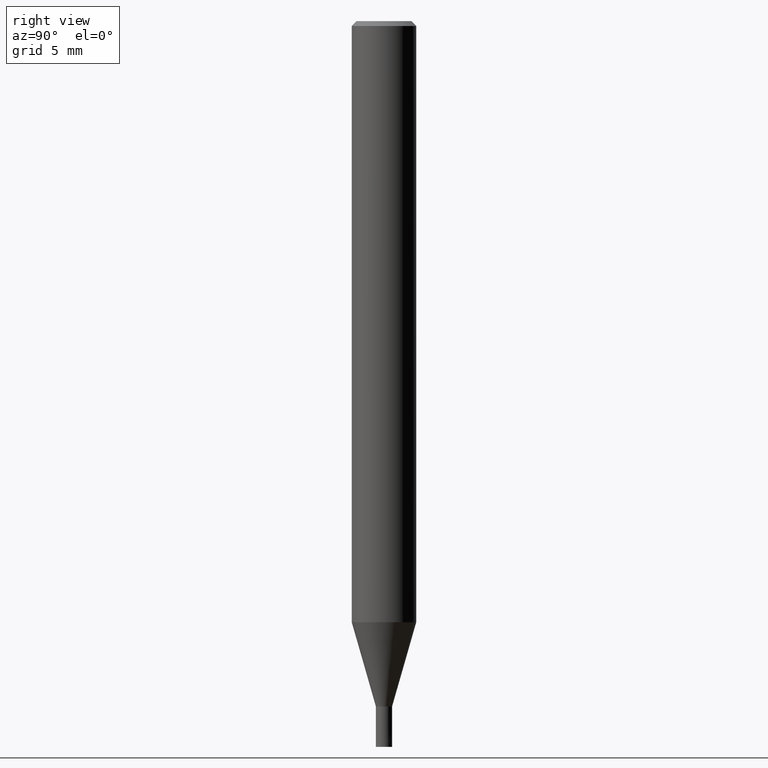
[diagram: clean part render]
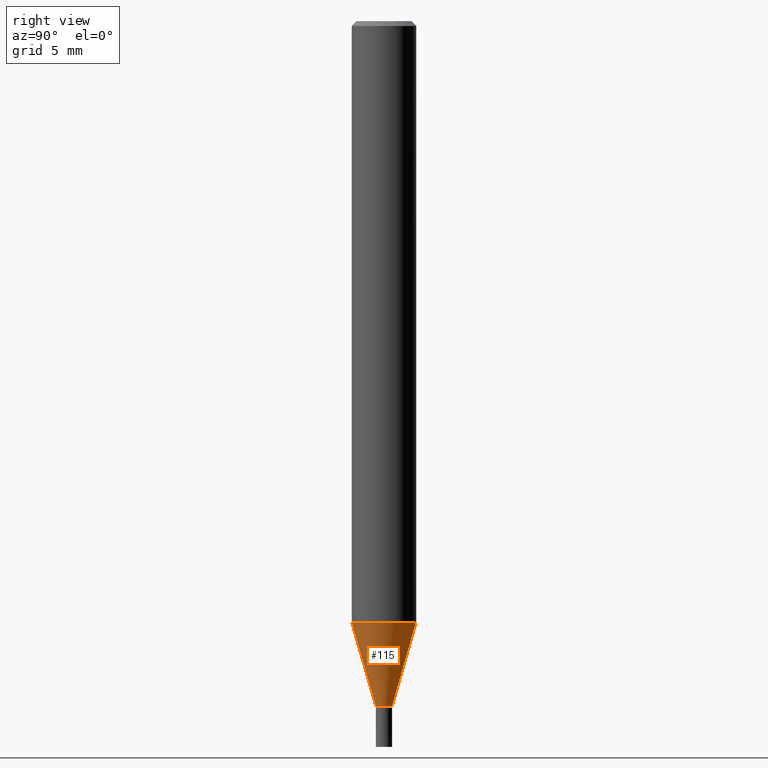
[diagram: same view with one face highlighted and labeled with its STEP entity id]
A machine part, right view. The second image highlights one B-rep face of the part: STEP entity #115.
In plain terms, the highlighted conical surface has half-angle 16 deg.
Its self-contained STEP definition (entity closure, byte-faithful):
#115=ADVANCED_FACE('',(#287),#288,.T.);
#117=EDGE_CURVE('',#163,#207,#290,.T.);
#157=VERTEX_POINT('',#336);
#163=VERTEX_POINT('',#342);
#185=EDGE_CURVE('',#163,#157,#366,.T.);
#189=EDGE_CURVE('',#197,#207,#370,.T.);
#197=VERTEX_POINT('',#379);
#207=VERTEX_POINT('',#392);
#255=EDGE_CURVE('',#157,#197,#448,.T.);
#287=FACE_OUTER_BOUND('',#473,.T.);
#288=CONICAL_SURFACE('',#474,1.24995,0.279258842899557);
#290=CIRCLE('',#477,1.99995);
#336=CARTESIAN_POINT('',(0.0,0.49995,-42.5));
#342=CARTESIAN_POINT('',(0.0,1.99995,-37.269));
#366=LINE('',#574,#575);
#370=LINE('',#580,#581);
#379=CARTESIAN_POINT('',(6.12241946593498E-017,-0.49995,-42.5));
#392=CARTESIAN_POINT('',(2.44915147732706E-016,-1.99995,-37.269));
#448=CIRCLE('',#676,0.49995);
#473=EDGE_LOOP('',(#693,#694,#695,#696));
#474=AXIS2_PLACEMENT_3D('',#697,#698,#699);
#477=AXIS2_PLACEMENT_3D('',#700,#701,#702);
#574=CARTESIAN_POINT('',(-1.53069671196028E-016,1.24995,-39.8845));
#575=VECTOR('',#792,1.0);
#580=CARTESIAN_POINT('',(1.53069671196028E-016,-1.24995,-39.8845));
#581=VECTOR('',#793,1.0);
#676=AXIS2_PLACEMENT_3D('',#897,#898,#899);
#693=ORIENTED_EDGE('',*,*,#185,.F.);
#694=ORIENTED_EDGE('',*,*,#117,.T.);
#695=ORIENTED_EDGE('',*,*,#189,.F.);
#696=ORIENTED_EDGE('',*,*,#255,.F.);
#697=CARTESIAN_POINT('',(0.0,0.0,-39.8845));
#698=DIRECTION('',(-0.0,-0.0,1.0));
#699=DIRECTION('',(0.0,1.0,0.0));
#700=CARTESIAN_POINT('',(0.0,0.0,-37.269));
#701=DIRECTION('',(0.0,0.0,-1.0));
#702=DIRECTION('',(0.0,1.0,0.0));
#792=DIRECTION('',(3.37554511665357E-017,-0.275643279664314,-0.961259997282682));
#793=DIRECTION('',(3.37554511665357E-017,-0.275643279664314,0.961259997282682));
#897=CARTESIAN_POINT('',(0.0,0.0,-42.5));
#898=DIRECTION('',(0.0,0.0,-1.0));
#899=DIRECTION('',(0.0,1.0,0.0));